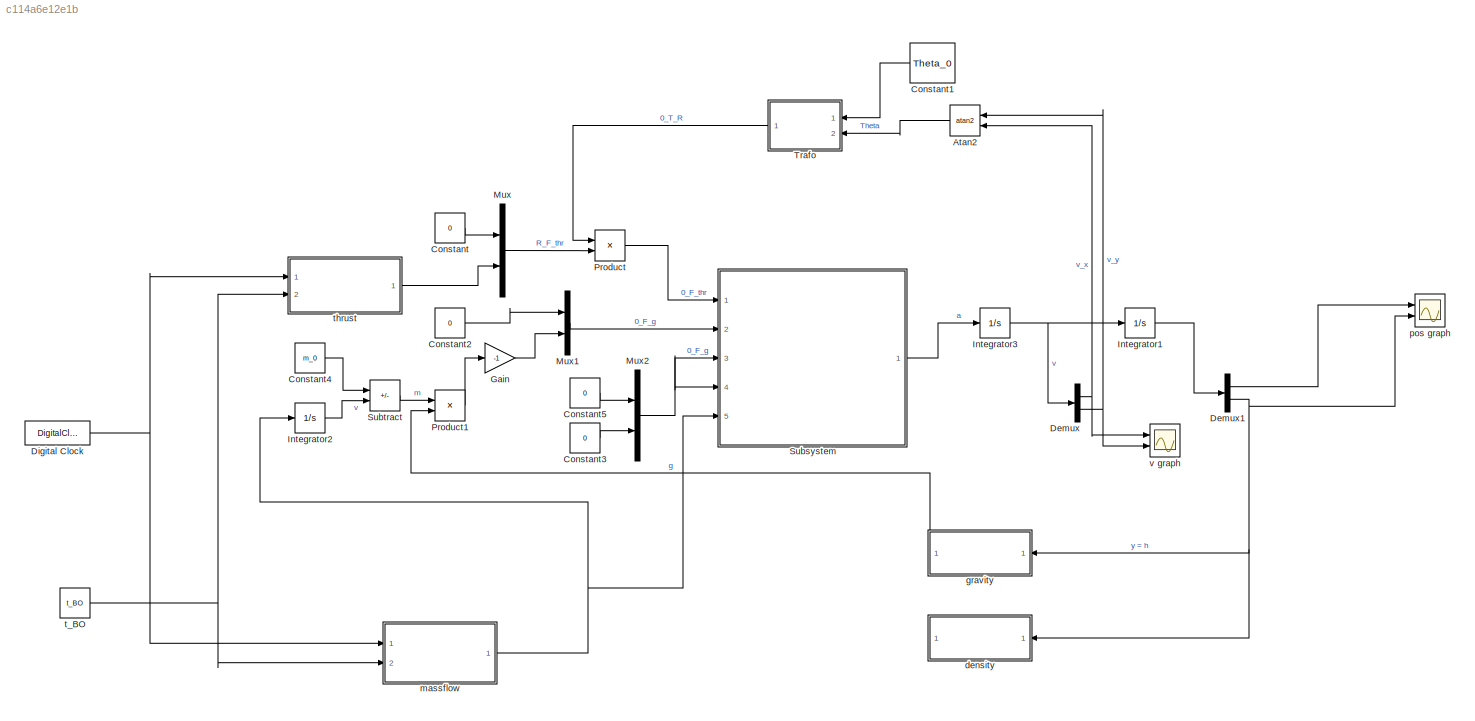
MODEL slx_c114a6e12e1b
KIND model
CONFIG AbsTol = auto
CONFIG EnableMultiTasking = off
CONFIG FixedStep = auto
CONFIG MaxStep = auto
CONFIG MinStep = auto
CONFIG RelTol = 1e-3
CONFIG SampleTimeConstraint = Unconstrained
CONFIG SolverName = VariableStepAuto
CONFIG StartTime = 0.0
CONFIG StopTime = 10.0
BLOCK [Trigonometry] Atan2
  Operator = atan2
  Ports = [2, 1]
BLOCK [Constant] Constant
  Value = 0
BLOCK [Constant] Constant1
  Value = Theta_0
BLOCK [Constant] Constant2
  Value = 0
BLOCK [Constant] Constant3
  Value = 0
BLOCK [Constant] Constant4
  Value = m_0
BLOCK [Constant] Constant5
  Value = 0
BLOCK [Demux] Demux
  Outputs = 2
  Ports = [1, 2]
BLOCK [Demux] Demux1
  Outputs = 2
  Ports = [1, 2]
BLOCK [DigitalClock] Digital Clock
BLOCK [Gain] Gain
  Gain = -1
BLOCK [Integrator] Integrator1
  Ports = [1, 1]
BLOCK [Integrator] Integrator2
  Ports = [1, 1]
BLOCK [Integrator] Integrator3
  Ports = [1, 1]
BLOCK [Mux] Mux
  DisplayOption = bar
  Inputs = 2
  Ports = [2, 1]
BLOCK [Mux] Mux1
  DisplayOption = bar
  Inputs = 2
  Ports = [2, 1]
BLOCK [Mux] Mux2
  DisplayOption = bar
  Inputs = 2
  Ports = [2, 1]
BLOCK [Product] Product
  Multiplication = Matrix(*)
  Ports = [2, 1]
BLOCK [Product] Product1
  Ports = [2, 1]
BLOCK [SubSystem] Subsystem
  PortSchema = {"entries":[{"content":{"sides":[{"content":{"connectorIds":["In1","In2","In4","In3","In5"]},"type":"ConnectorPlacement.EquallySpacedRectSide","uuid":"9ef3e48b-891b-4d0d-a708-ee121c0097dd"},{"content":{"connectorIds":["Out1"],"side":"RIGHT"},"type":"ConnectorPlacement.EquallySpacedRectSide","uuid":"fe012b3b-856e-4c20-af45-176b50db60e5"},{"content":{"connectorIds":[],"side":"TOP"},"type":"Connector...<+264ch>
  Ports = [5, 1]
  ReferencedSubsystem = acceleration
  RequestExecContextInheritance = off
BLOCK [Sum] Subtract
  IconShape = rectangular
  Inputs = +-
  Ports = [2, 1]
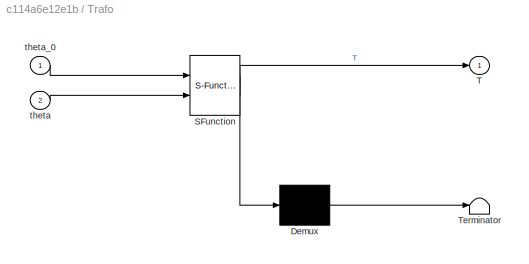
BLOCK [SubSystem] Trafo
  ErrorFcn = Stateflow.Translate.translate
  PermitHierarchicalResolution = ExplicitOnly
  Ports = [2, 1]
  RequestExecContextInheritance = off
  SFBlockType = MATLAB Function
  TreatAsAtomicUnit = on
BLOCK [Demux] Trafo/ Demux 
  Outputs = 1
  Ports = [1, 1]
BLOCK [S-Function] Trafo/ SFunction 
  EnableBusSupport = off
  FunctionName = sf_sfun
  PortCounts = [2 2]
  Ports = [2, 2]
  SFcnIsStateOwnerBlock = off
  SFunctionDeploymentMode = off
  Tag = Stateflow S-Function 3
BLOCK [Terminator] Trafo/ Terminator 
BLOCK [Outport] Trafo/T
BLOCK [Inport] Trafo/theta
  Port = 2
BLOCK [Inport] Trafo/theta_0
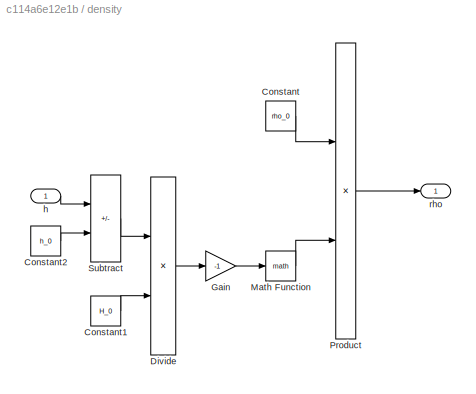
BLOCK [SubSystem] density
  Ports = [1, 1]
  RequestExecContextInheritance = off
BLOCK [Constant] density/Constant
  Value = rho_0
  VectorParams1D = off
BLOCK [Constant] density/Constant1
  Value = H_0
  VectorParams1D = off
BLOCK [Constant] density/Constant2
  Value = h_0
  VectorParams1D = off
BLOCK [Product] density/Divide
  Inputs = */
  Ports = [2, 1]
BLOCK [Gain] density/Gain
  Gain = -1
BLOCK [Math] density/Math Function
  Ports = [1, 1]
BLOCK [Product] density/Product
  Ports = [2, 1]
BLOCK [Sum] density/Subtract
  IconShape = rectangular
  Inputs = +-
  Ports = [2, 1]
BLOCK [Inport] density/h
BLOCK [Outport] density/rho
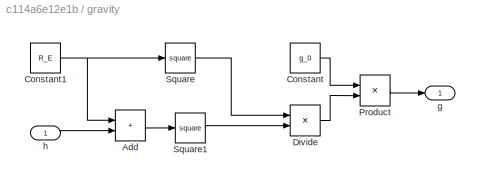
BLOCK [SubSystem] gravity
  Ports = [1, 1]
  RequestExecContextInheritance = off
BLOCK [Sum] gravity/Add
  IconShape = rectangular
  Ports = [2, 1]
BLOCK [Constant] gravity/Constant
  Value = g_0
BLOCK [Constant] gravity/Constant1
  Value = R_E
BLOCK [Product] gravity/Divide
  Inputs = */
  Ports = [2, 1]
BLOCK [Product] gravity/Product
  Ports = [2, 1]
BLOCK [Math] gravity/Square
  Operator = square
  Ports = [1, 1]
BLOCK [Math] gravity/Square1
  Operator = square
  Ports = [1, 1]
BLOCK [Outport] gravity/g
BLOCK [Inport] gravity/h
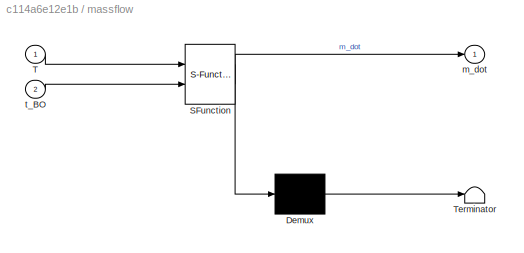
BLOCK [SubSystem] massflow
  ErrorFcn = Stateflow.Translate.translate
  PermitHierarchicalResolution = ExplicitOnly
  Ports = [2, 1]
  RequestExecContextInheritance = off
  SFBlockType = MATLAB Function
  TreatAsAtomicUnit = on
BLOCK [Demux] massflow/ Demux 
  Outputs = 1
  Ports = [1, 1]
BLOCK [S-Function] massflow/ SFunction 
  EnableBusSupport = on
  FunctionName = sf_sfun
  PortCounts = [2 2]
  Ports = [2, 2]
  SFcnIsStateOwnerBlock = off
  SFunctionDeploymentMode = off
  Tag = Stateflow S-Function 2
BLOCK [Terminator] massflow/ Terminator 
BLOCK [Inport] massflow/T
BLOCK [Outport] massflow/m_dot
BLOCK [Inport] massflow/t_BO
  Port = 2
BLOCK [Scope] pos graph
  Floating = off
  NumInputPorts = 2
  Ports = [2]
  ScopeSpecificationString = Simulink.scopes.TimeScopeBlockCfg('CurrentConfiguration', extmgr.ConfigurationSet(extmgr.Configuration('Core','General UI',true),extmgr.Configuration('Core','Source UI',true),extmgr.Configuration('Sources','WiredSimulink',true),extmgr.Configuration('Visuals','Time Domain',true),extmgr.Configuration('Tools','Plot Navigation',true),extmgr.Configuration('Tools','Measurements',true,'Version','2021a'))...<+19ch>
BLOCK [Constant] t_BO
  Value = t_BO
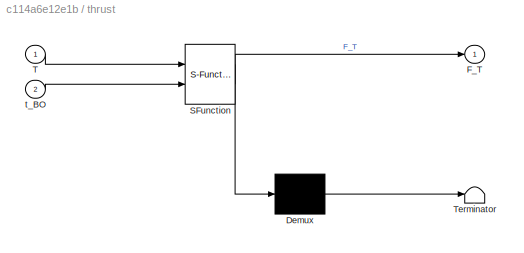
BLOCK [SubSystem] thrust
  ErrorFcn = Stateflow.Translate.translate
  PermitHierarchicalResolution = ExplicitOnly
  Ports = [2, 1]
  RequestExecContextInheritance = off
  SFBlockType = MATLAB Function
  TreatAsAtomicUnit = on
BLOCK [Demux] thrust/ Demux 
  Outputs = 1
  Ports = [1, 1]
BLOCK [S-Function] thrust/ SFunction 
  EnableBusSupport = off
  FunctionName = sf_sfun
  PortCounts = [2 2]
  Ports = [2, 2]
  SFcnIsStateOwnerBlock = off
  SFunctionDeploymentMode = off
  Tag = Stateflow S-Function 1
BLOCK [Terminator] thrust/ Terminator 
BLOCK [Outport] thrust/F_T
BLOCK [Inport] thrust/T
BLOCK [Inport] thrust/t_BO
  Port = 2
BLOCK [Scope] v graph
  Floating = off
  NumInputPorts = 2
  Ports = [2]
  ScopeSpecificationString = Simulink.scopes.TimeScopeBlockCfg('CurrentConfiguration', extmgr.ConfigurationSet(extmgr.Configuration('Core','General UI',true),extmgr.Configuration('Core','Source UI',true),extmgr.Configuration('Sources','WiredSimulink',true,'DataLoggingVariableName','ScopeData1'),extmgr.Configuration('Visuals','Time Domain',true),extmgr.Configuration('Tools','Plot Navigation',true),extmgr.Configuration('Tools',...<+58ch>
LINE Atan2:1 -> Trafo:2
LINE Constant1:1 -> Trafo:1
LINE Constant2:1 -> Mux1:1
LINE Constant3:1 -> Mux2:2
LINE Constant4:1 -> Subtract:1
LINE Constant5:1 -> Mux2:1
LINE Constant:1 -> Mux:1
LINE Demux1:1 -> pos graph:1
NET Demux1:2 -> density:1, gravity:1, pos graph:2
NET Demux:1 -> Atan2:2, v graph:1
NET Demux:2 -> Atan2:1, v graph:2
NET Digital Clock:1 -> massflow:1, thrust:1
LINE Gain:1 -> Mux1:2
LINE Integrator1:1 -> Demux1:1
LINE Integrator2:1 -> Subtract:2
NET Integrator3:1 -> Demux:1, Integrator1:1
LINE Mux1:1 -> Subsystem:2
NET Mux2:1 -> Subsystem:3, Subsystem:4
LINE Mux:1 -> Product:2
LINE Product1:1 -> Gain:1
LINE Product:1 -> Subsystem:1
LINE Subsystem:1 -> Integrator3:1
LINE Subtract:1 -> Product1:1
LINE Trafo:1 -> Product:1
LINE density/Constant1:1 -> density/Divide:2
LINE density/Constant2:1 -> density/Subtract:2
LINE density/Constant:1 -> density/Product:1
LINE density/Divide:1 -> density/Gain:1
LINE density/Gain:1 -> density/Math Function:1
LINE density/Math Function:1 -> density/Product:2
LINE density/Product:1 -> density/rho:1
LINE density/Subtract:1 -> density/Divide:1
LINE density/h:1 -> density/Subtract:1
LINE gravity/Add:1 -> gravity/Square1:1
NET gravity/Constant1:1 -> gravity/Add:1, gravity/Square:1
LINE gravity/Constant:1 -> gravity/Product:1
LINE gravity/Divide:1 -> gravity/Product:2
LINE gravity/Product:1 -> gravity/g:1
LINE gravity/Square1:1 -> gravity/Divide:2
LINE gravity/Square:1 -> gravity/Divide:1
LINE gravity/h:1 -> gravity/Add:2
LINE gravity:1 -> Product1:2
NET massflow:1 -> Integrator2:1, Subsystem:5
NET t_BO:1 -> massflow:2, thrust:2
LINE thrust:1 -> Mux:2
note: NET lines group one-source signal fan-out (src -> all destinations, sorted); 1:1 wires keep LINE
CHART massflow states=1 transitions=1
  STATE_LABEL 'eML_blk_kernel()'
  STATE_LABEL 'SCRIPT:\nfunction m_dot = massflow(T,t_BO)\n% this is an interpolation of the massflow for a certain rocket motor:\n% O3400\n%Inputs: Time T to evaluate, time of burnout of motort\n%Output: massflow at time T in kg:  m_dot(T)\nm_dot = 0;\nif(T <= t_BO)\n    %data:\n    t = [0, 0.04, 0.052, 0.101, 0.19, 0.38, 0.965, 2.176, 2.887,3.658, 4.17, 4.493, ...\n        4.881, 5.483, 6.137, 6.322];\n    m = 1e-3.*[112...<+627ch>'
CHART Trafo states=1 transitions=1
  STATE_LABEL 'eML_blk_kernel()'
  STATE_LABEL 'SCRIPT:\nfunction T = Trafo(theta_0,theta)\n %Transformation from the rocket coordinate system to the world system\n %(x,y)\n if(isnan(theta))\n     theta = theta_0;\n end\n T = [cos(theta), -sin(theta);\n     sin(theta),cos(theta)];\nendfunction y = fcn(u)\n\ny = u;\n'
CHART thrust states=1 transitions=1
  STATE_LABEL 'eML_blk_kernel()'
  STATE_LABEL 'SCRIPT:\nfunction F_T = thrust(T,t_BO)\n% this is an interpolation of the thrust for a certain rocket motor:\n% O3400\n%Inputs: Time T to evaluate, time of burnout of motort\n%Output: thrust at time T in N:  F_T(T)\nF_T = 0;\n    if(T <= t_BO)\n        %data:\n        t = [0, 0.04, 0.052, 0.101, 0.19, 0.38, 0.965, 2.176, 2.887,3.658, 4.17, 4.493, ...\n            4.881, 5.483, 6.137, 6.322];\n        f = [0,...<+529ch>'
CHART  states=0 transitions=0
CHART  states=0 transitions=0
CHART  states=0 transitions=0
